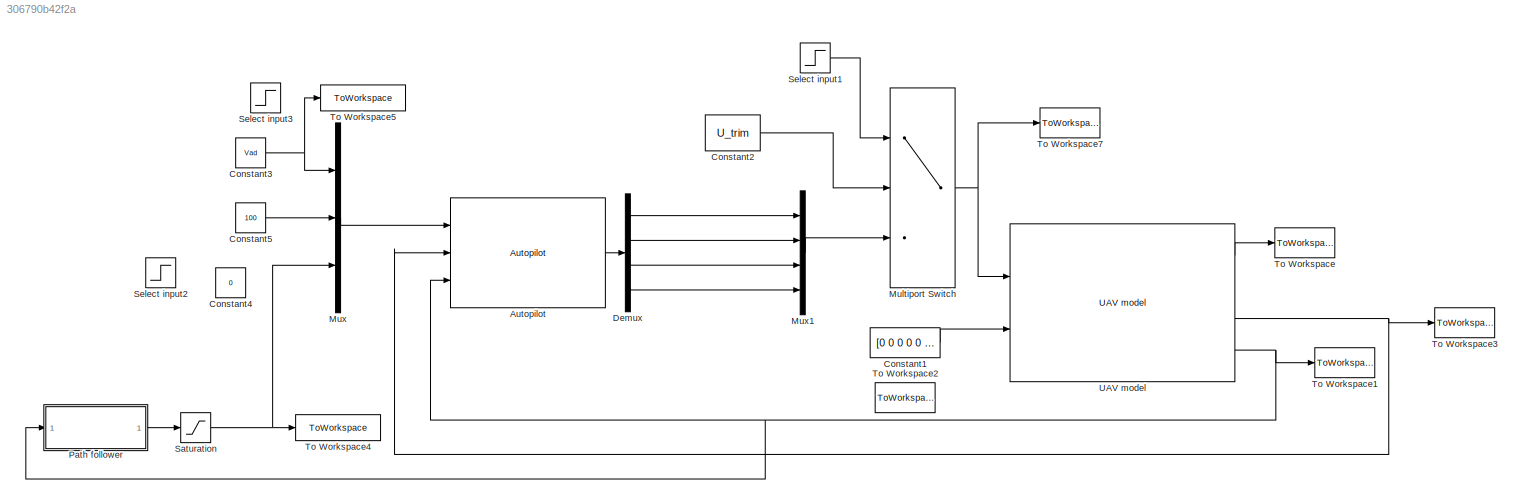
MODEL slx_306790b42f2a
KIND model
CONFIG AbsTol = auto
CONFIG FixedStep = auto
CONFIG MaxStep = auto
CONFIG MinStep = auto
CONFIG RelTol = 1e-3
CONFIG SampleTimeConstraint = Unconstrained
CONFIG Solver = VariableStepAuto
CONFIG SolverMode = Auto
CONFIG SolverName = VariableStepAuto
CONFIG StartTime = 0.0
CONFIG StopTime = 100
BLOCK [Reference] Autopilot  REF=X8_lib/Autopilot
  Ports = [3, 1]
  SourceBlock = X8_lib/Autopilot
BLOCK [Constant] Constant1
  Value = [0 0 0 0 0 0]
BLOCK [Constant] Constant2
  Value = U_trim
BLOCK [Constant] Constant3
  Value = Vad
BLOCK [Constant] Constant4
  Value = 0
BLOCK [Constant] Constant5
  Value = 100
BLOCK [Demux] Demux
  DisplayOption = bar
  Ports = [1, 4]
BLOCK [MultiPortSwitch] Multiport Switch
  InputSameDT = off
  Inputs = 2
  Ports = [3, 1]
  SaturateOnIntegerOverflow = off
BLOCK [Mux] Mux
  DisplayOption = bar
  Inputs = 3
  Ports = [3, 1]
BLOCK [Mux] Mux1
  DisplayOption = bar
  Ports = [4, 1]
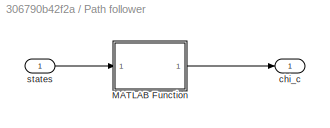
BLOCK [SubSystem] Path follower
  Ports = [1, 1]
  RequestExecContextInheritance = off
  Variant = off
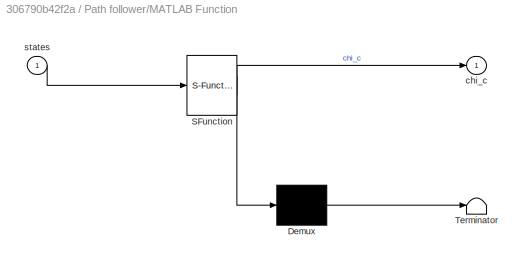
BLOCK [SubSystem] Path follower/MATLAB Function
  ErrorFcn = Stateflow.Translate.translate
  PermitHierarchicalResolution = ExplicitOnly
  Ports = [1, 1]
  RequestExecContextInheritance = off
  SFBlockType = MATLAB Function
  TreatAsAtomicUnit = on
  Variant = off
BLOCK [Demux] Path follower/MATLAB Function/ Demux 
  Outputs = 1
  Ports = [1, 1]
BLOCK [S-Function] Path follower/MATLAB Function/ SFunction 
  EnableBusSupport = on
  FunctionName = sf_sfun
  PortCounts = [1 2]
  Ports = [1, 2]
  SFunctionDeploymentMode = off
  Tag = Stateflow S-Function autopilot_fly 2
BLOCK [Terminator] Path follower/MATLAB Function/ Terminator 
BLOCK [Outport] Path follower/MATLAB Function/chi_c
  IconDisplay = Port number
BLOCK [Inport] Path follower/MATLAB Function/states
  IconDisplay = Port number
BLOCK [Outport] Path follower/chi_c
  IconDisplay = Port number
BLOCK [Inport] Path follower/states
  IconDisplay = Port number
BLOCK [Saturate] Saturation
  InputPortMap = u0
  LowerLimit = -pi+0.1
  Ports = [1, 1]
  UpperLimit = pi-0.1
BLOCK [Step] Select input1
  After = 2
  Before = 1
  SampleTime = 0
BLOCK [Step] Select input2
  After = pi/4
  SampleTime = 0
  Time = 40
BLOCK [Step] Select input3
  After = 30
  Before = 35
  SampleTime = 0
  Time = 50
BLOCK [ToWorkspace] To Workspace
  FixptAsFi = on
  MaxDataPoints = inf
  Ports = [1]
  SampleTime = -1
  Save2DSignal = 3-D array (concatenate along third dimension)
  SaveFormat = Timeseries
  VariableName = control
BLOCK [ToWorkspace] To Workspace1
  FixptAsFi = on
  MaxDataPoints = inf
  Ports = [1]
  SampleTime = -1
  Save2DSignal = 3-D array (concatenate along third dimension)
  SaveFormat = Timeseries
  VariableName = states
BLOCK [ToWorkspace] To Workspace2
  FixptAsFi = on
  MaxDataPoints = inf
  Ports = [1]
  SampleTime = -1
  Save2DSignal = 3-D array (concatenate along third dimension)
  SaveFormat = Timeseries
  VariableName = delta
BLOCK [ToWorkspace] To Workspace3
  FixptAsFi = on
  MaxDataPoints = inf
  Ports = [1]
  SampleTime = -1
  Save2DSignal = 3-D array (concatenate along third dimension)
  SaveFormat = Timeseries
  VariableName = airdata
BLOCK [ToWorkspace] To Workspace4
  FixptAsFi = on
  MaxDataPoints = inf
  Ports = [1]
  SampleTime = -1
  Save2DSignal = 3-D array (concatenate along third dimension)
  SaveFormat = Timeseries
  VariableName = heading_desired
BLOCK [ToWorkspace] To Workspace5
  FixptAsFi = on
  MaxDataPoints = inf
  Ports = [1]
  SampleTime = -1
  Save2DSignal = 3-D array (concatenate along third dimension)
  SaveFormat = Timeseries
  VariableName = va_desired
BLOCK [ToWorkspace] To Workspace7
  FixptAsFi = on
  MaxDataPoints = inf
  Ports = [1]
  SampleTime = -1
  Save2DSignal = 3-D array (concatenate along third dimension)
  SaveFormat = Timeseries
  VariableName = control1
BLOCK [Reference] UAV model  REF=X8_lib/UAV model
  Ports = [2, 4]
  SourceBlock = X8_lib/UAV model
LINE Autopilot:1 -> Demux:1
LINE Constant1:1 -> UAV model:2
LINE Constant2:1 -> Multiport Switch:2
NET Constant3:1 -> Mux:1, To Workspace5:1
LINE Constant5:1 -> Mux:2
LINE Demux:1 -> Mux1:1
LINE Demux:2 -> Mux1:2
LINE Demux:3 -> Mux1:3
LINE Demux:4 -> Mux1:4
NET Multiport Switch:1 -> To Workspace7:1, UAV model:1
LINE Mux1:1 -> Multiport Switch:3
LINE Mux:1 -> Autopilot:1
LINE Path follower/MATLAB Function:1 -> Path follower/chi_c:1
LINE Path follower/states:1 -> Path follower/MATLAB Function:1
LINE Path follower:1 -> Saturation:1
NET Saturation:1 -> Mux:3, To Workspace4:1
LINE Select input1:1 -> Multiport Switch:1
LINE UAV model:1 -> To Workspace:1
NET UAV model:3 -> Autopilot:2, To Workspace3:1
NET UAV model:4 -> Autopilot:3, Path follower:1, To Workspace1:1
note: NET lines group one-source signal fan-out (src -> all destinations, sorted); 1:1 wires keep LINE
CHART Path follower/MATLAB Function states=1 transitions=1
  STATE_LABEL 'eML_blk_kernel()'
  STATE_LABEL 'SCRIPT:\nfunction chi_c = fcn(states)\n%#codegen\n    \nchi_c = pathFollower([states.Position.p_N, states.Position.p_E, states.Position.p_D], states.Attitude.psi);'
